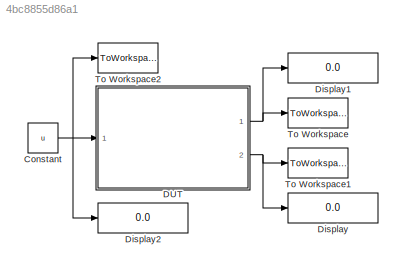
MODEL slx_4bc8855d86a1
KIND model
CONFIG AbsTol = auto
CONFIG EnableMultiTasking = off
CONFIG FixedStep = auto
CONFIG MaxStep = auto
CONFIG MinStep = auto
CONFIG RelTol = 1e-3
CONFIG SampleTimeConstraint = Unconstrained
CONFIG SolverName = FixedStepDiscrete
CONFIG StartTime = 0.0
CONFIG StopTime = 10
WORKSPACE source: mxarray member
WORKSPACE maxWordLength = 64
WORKSPACE u: embedded.fi (value not decoded)
BLOCK [Constant] Constant
  SampleTime = 1
  Value = u
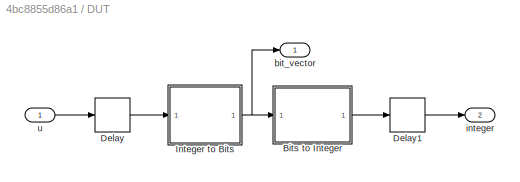
BLOCK [SubSystem] DUT
  Ports = [1, 2]
  RequestExecContextInheritance = off
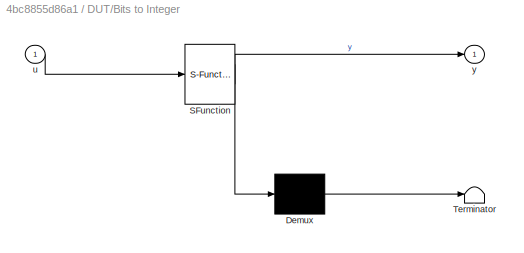
BLOCK [SubSystem] DUT/Bits to Integer
  ErrorFcn = Stateflow.Translate.translate
  PermitHierarchicalResolution = ExplicitOnly
  Ports = [1, 1]
  RequestExecContextInheritance = off
  SFBlockType = MATLAB Function
  TreatAsAtomicUnit = on
BLOCK [Demux] DUT/Bits to Integer/ Demux 
  Outputs = 1
  Ports = [1, 1]
BLOCK [S-Function] DUT/Bits to Integer/ SFunction 
  EnableBusSupport = off
  FunctionName = sf_sfun
  PortCounts = [1 2]
  Ports = [1, 2]
  SFcnIsStateOwnerBlock = off
  SFunctionDeploymentMode = off
  Tag = Stateflow S-Function 116
BLOCK [Terminator] DUT/Bits to Integer/ Terminator 
BLOCK [Inport] DUT/Bits to Integer/u
BLOCK [Outport] DUT/Bits to Integer/y
BLOCK [Delay] DUT/Delay
  DelayLength = 1
  InputPortMap = u0
  Ports = [1, 1]
BLOCK [Delay] DUT/Delay1
  DelayLength = 1
  InputPortMap = u0
  Ports = [1, 1]
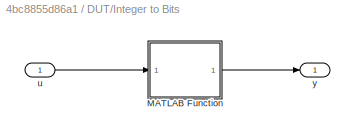
BLOCK [SubSystem] DUT/Integer to Bits
  Ports = [1, 1]
  RequestExecContextInheritance = off
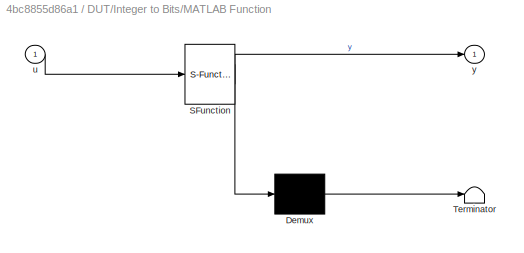
BLOCK [SubSystem] DUT/Integer to Bits/MATLAB Function
  ErrorFcn = Stateflow.Translate.translate
  PermitHierarchicalResolution = ExplicitOnly
  Ports = [1, 1]
  RequestExecContextInheritance = off
  SFBlockType = MATLAB Function
  TreatAsAtomicUnit = on
BLOCK [Demux] DUT/Integer to Bits/MATLAB Function/ Demux 
  Outputs = 1
  Ports = [1, 1]
BLOCK [S-Function] DUT/Integer to Bits/MATLAB Function/ SFunction 
  EnableBusSupport = off
  FunctionName = sf_sfun
  Parameters = maxWordLength
  PortCounts = [1 2]
  Ports = [1, 2]
  SFcnIsStateOwnerBlock = off
  SFunctionDeploymentMode = off
  Tag = Stateflow S-Function 115
BLOCK [Terminator] DUT/Integer to Bits/MATLAB Function/ Terminator 
BLOCK [Inport] DUT/Integer to Bits/MATLAB Function/u
BLOCK [Outport] DUT/Integer to Bits/MATLAB Function/y
BLOCK [Inport] DUT/Integer to Bits/u
BLOCK [Outport] DUT/Integer to Bits/y
BLOCK [Outport] DUT/bit_vector
BLOCK [Outport] DUT/integer
  Port = 2
BLOCK [Inport] DUT/u
BLOCK [Display] Display
  Decimation = 1
  Ports = [1]
BLOCK [Display] Display1
  Decimation = 1
  Ports = [1]
BLOCK [Display] Display2
  Decimation = 1
  Ports = [1]
BLOCK [ToWorkspace] To Workspace
  FixptAsFi = on
  MaxDataPoints = 1
  Ports = [1]
  SampleTime = 1
  VariableName = bit_vector
BLOCK [ToWorkspace] To Workspace1
  FixptAsFi = on
  MaxDataPoints = 1
  Ports = [1]
  SampleTime = 1
  VariableName = integer
BLOCK [ToWorkspace] To Workspace2
  FixptAsFi = on
  MaxDataPoints = 1
  Ports = [1]
  SampleTime = 1
  VariableName = u
NET Constant:1 -> DUT:1, Display2:1, To Workspace2:1
LINE DUT/Bits to Integer:1 -> DUT/Delay1:1
LINE DUT/Delay1:1 -> DUT/integer:1
LINE DUT/Delay:1 -> DUT/Integer to Bits:1
LINE DUT/Integer to Bits/MATLAB Function:1 -> DUT/Integer to Bits/y:1
LINE DUT/Integer to Bits/u:1 -> DUT/Integer to Bits/MATLAB Function:1
NET DUT/Integer to Bits:1 -> DUT/Bits to Integer:1, DUT/bit_vector:1
LINE DUT/u:1 -> DUT/Delay:1
NET DUT:1 -> Display1:1, To Workspace:1
NET DUT:2 -> Display:1, To Workspace1:1
note: NET lines group one-source signal fan-out (src -> all destinations, sorted); 1:1 wires keep LINE
CHART DUT/Integer to Bits/MATLAB Function states=1 transitions=1
  STATE_LABEL 'eML_blk_kernel()'
  STATE_LABEL "SCRIPT:\nfunction y = integerToBits(u,maxWordLength)\n    assert(isfi(u) && isfixed(u) && isscalar(u) && isreal(u));\n    assert(u.WordLength <= maxWordLength)\n    y = zeros(1,maxWordLength,'like',fi([],0,1,0));\n    coder.unroll\n    for k = 1:u.WordLength\n        y(k) = bitsliceget(u, k, k);\n    end\nend\n"
CHART DUT/Bits to Integer states=1 transitions=1
  STATE_LABEL 'eML_blk_kernel()'
  STATE_LABEL 'SCRIPT:\nfunction y = bitsToInteger(u)\n    assert(isfi(u) && isfixed(u) && isvector(u) && isreal(u));\n    w = length(u);\n    y = fi(0,0,w,0);\n    coder.unroll\n    for k = 1:w\n        y = bitset(y, k, u(k));\n    end\nend\n'
CHART  states=0 transitions=0
CHART  states=0 transitions=0
